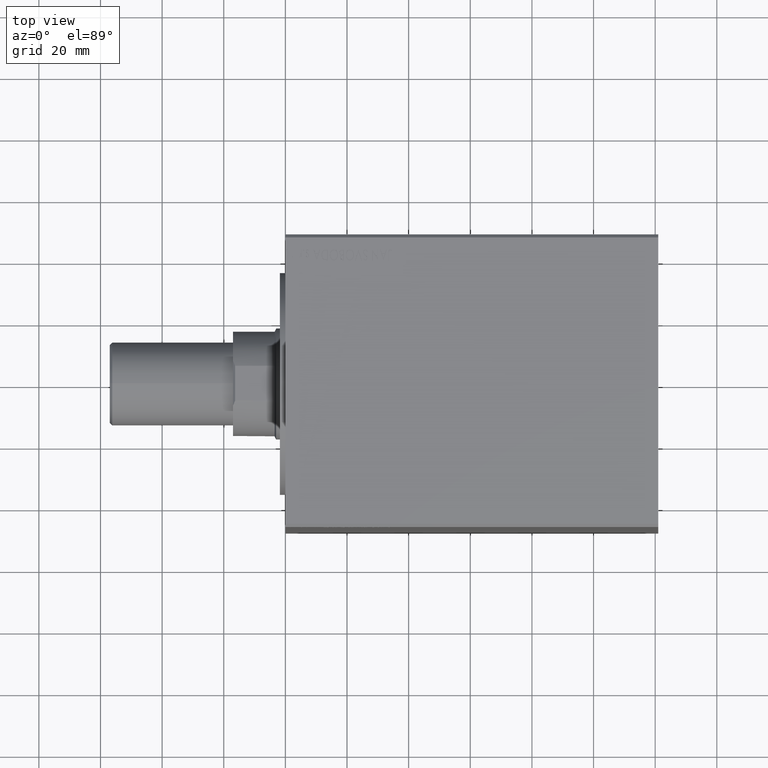
[diagram: clean part render]
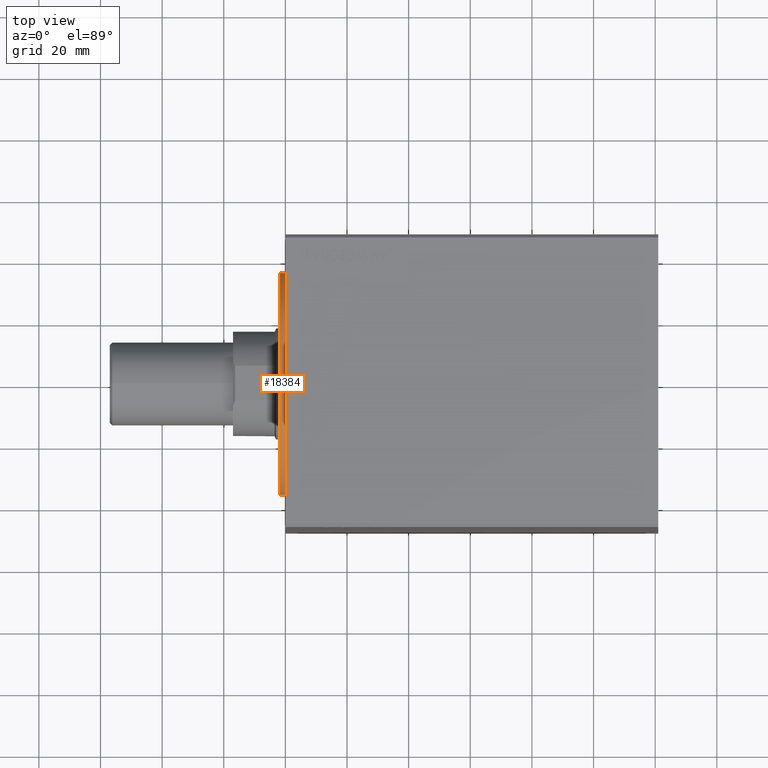
[diagram: same view with one face highlighted and labeled with its STEP entity id]
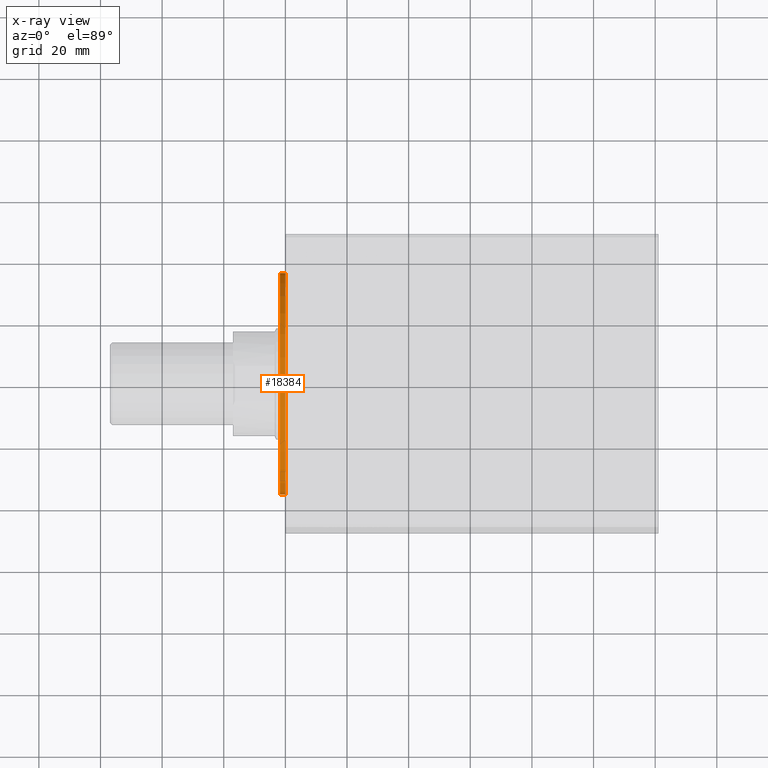
[diagram: x-ray of the same camera — body ghosted, the highlighted face saturated]
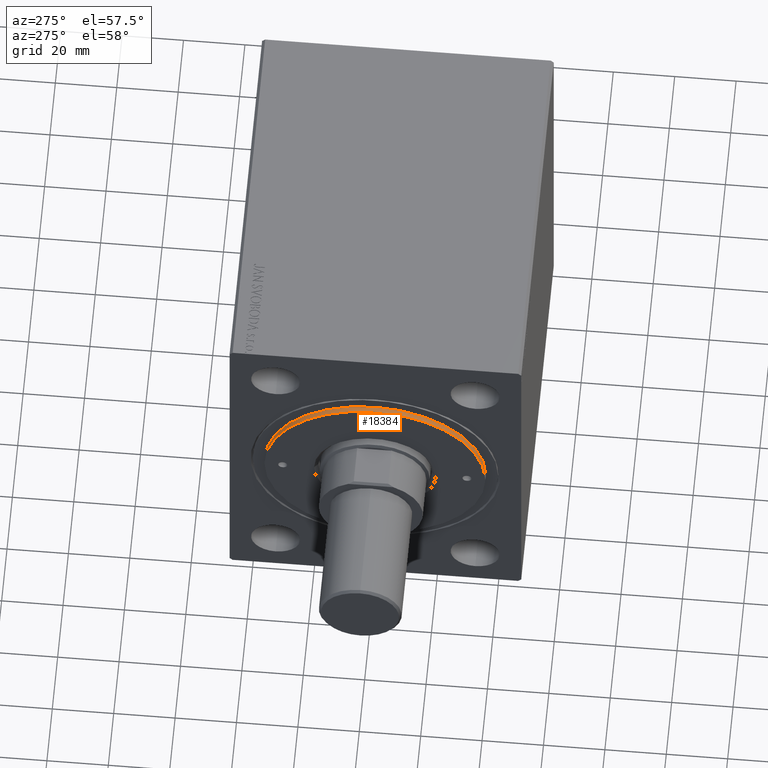
[diagram: same view with one face highlighted and labeled with its STEP entity id]
A machine part, top view. The second image highlights one B-rep face of the part: STEP entity #18384.
The next image is the same camera in x-ray: the body ghosted, the highlighted face saturated — about 0% of this face is hidden behind the body in this view.
A second angle (auxiliary view) of the same face is appended — the face is thin or edge-on in the first view.
In plain terms, the highlighted cylindrical surface (partial cylindrical patch) has radius 36 mm, axis along (1, -0, 0).
Its self-contained STEP definition (entity closure, byte-faithful):
#1002 = VECTOR ( 'NONE', #41911, 1000.000000000000000 ) ;
#2596 = DIRECTION ( 'NONE',  ( 1.000000000000000000, 0.000000000000000000, 0.000000000000000000 ) ) ;
#2683 = DIRECTION ( 'NONE',  ( 1.000000000000000000, 0.000000000000000000, 0.000000000000000000 ) ) ;
#2697 = VECTOR ( 'NONE', #37773, 1000.000000000000000 ) ;
#3037 = CYLINDRICAL_SURFACE ( 'NONE', #31299, 36.00000000000000000 ) ;
#4802 = LINE ( 'NONE', #38796, #1002 ) ;
#5953 = DIRECTION ( 'NONE',  ( -0.000000000000000000, -0.000000000000000000, -1.000000000000000000 ) ) ;
#6386 = DIRECTION ( 'NONE',  ( -1.000000000000000000, 0.000000000000000000, 0.000000000000000000 ) ) ;
#10640 = CIRCLE ( 'NONE', #35591, 36.00000000000000000 ) ;
#10900 = ORIENTED_EDGE ( 'NONE', *, *, #17932, .F. ) ;
#11988 = ORIENTED_EDGE ( 'NONE', *, *, #38595, .T. ) ;
#12903 = CARTESIAN_POINT ( 'NONE',  ( 0.000000000000000000, 0.000000000000000000, 11.79999999999999893 ) ) ;
#13903 = CARTESIAN_POINT ( 'NONE',  ( 36.00000000000000000, 4.408728476930470856E-15, 11.79999999999999893 ) ) ;
#14491 = CARTESIAN_POINT ( 'NONE',  ( 36.00000000000000000, 4.408728476930470856E-15, 10.00000000000000000 ) ) ;
#15117 = CIRCLE ( 'NONE', #23637, 36.00000000000000000 ) ;
#16482 = FACE_OUTER_BOUND ( 'NONE', #22198, .T. ) ;
#17932 = EDGE_CURVE ( 'NONE', #36521, #39430, #30187, .T. ) ;
#18384 = ADVANCED_FACE ( 'NONE', ( #16482 ), #3037, .T. ) ;
#19609 = CARTESIAN_POINT ( 'NONE',  ( 0.000000000000000000, 0.000000000000000000, 10.00000000000000000 ) ) ;
#20148 = EDGE_CURVE ( 'NONE', #20545, #39430, #10640, .T. ) ;
#20545 = VERTEX_POINT ( 'NONE', #32031 ) ;
#22198 = EDGE_LOOP ( 'NONE', ( #10900, #43876, #11988, #41034 ) ) ;
#23637 = AXIS2_PLACEMENT_3D ( 'NONE', #39576, #43130, #2683 ) ;
#25093 = CARTESIAN_POINT ( 'NONE',  ( -36.00000000000000000, 0.000000000000000000, 11.79999999999999893 ) ) ;
#27068 = VERTEX_POINT ( 'NONE', #25093 ) ;
#30187 = LINE ( 'NONE', #37340, #2697 ) ;
#30856 = EDGE_CURVE ( 'NONE', #27068, #36521, #15117, .T. ) ;
#31299 = AXIS2_PLACEMENT_3D ( 'NONE', #12903, #5953, #6386 ) ;
#32031 = CARTESIAN_POINT ( 'NONE',  ( -36.00000000000000000, 0.000000000000000000, 10.00000000000000000 ) ) ;
#35591 = AXIS2_PLACEMENT_3D ( 'NONE', #19609, #39699, #2596 ) ;
#36521 = VERTEX_POINT ( 'NONE', #13903 ) ;
#37340 = CARTESIAN_POINT ( 'NONE',  ( 36.00000000000000000, 4.408728476930470856E-15, 11.79999999999999893 ) ) ;
#37773 = DIRECTION ( 'NONE',  ( -0.000000000000000000, -0.000000000000000000, -1.000000000000000000 ) ) ;
#38595 = EDGE_CURVE ( 'NONE', #27068, #20545, #4802, .T. ) ;
#38796 = CARTESIAN_POINT ( 'NONE',  ( -36.00000000000000000, 0.000000000000000000, 11.79999999999999893 ) ) ;
#39430 = VERTEX_POINT ( 'NONE', #14491 ) ;
#39576 = CARTESIAN_POINT ( 'NONE',  ( 0.000000000000000000, 0.000000000000000000, 11.79999999999999893 ) ) ;
#39699 = DIRECTION ( 'NONE',  ( 0.000000000000000000, 0.000000000000000000, 1.000000000000000000 ) ) ;
#41034 = ORIENTED_EDGE ( 'NONE', *, *, #20148, .T. ) ;
#41911 = DIRECTION ( 'NONE',  ( -0.000000000000000000, -0.000000000000000000, -1.000000000000000000 ) ) ;
#43130 = DIRECTION ( 'NONE',  ( 0.000000000000000000, 0.000000000000000000, 1.000000000000000000 ) ) ;
#43876 = ORIENTED_EDGE ( 'NONE', *, *, #30856, .F. ) ;